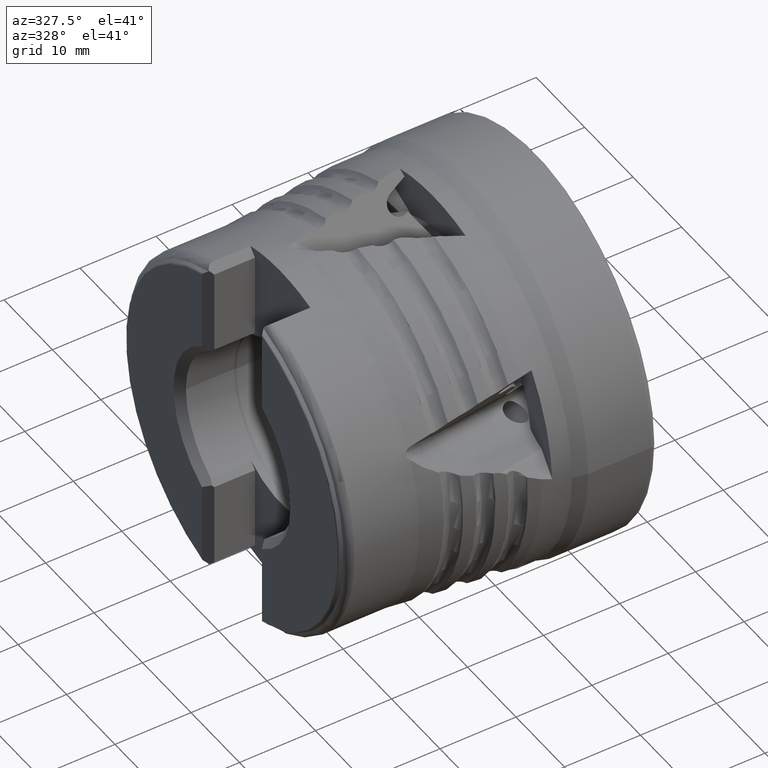
[diagram: clean part render]
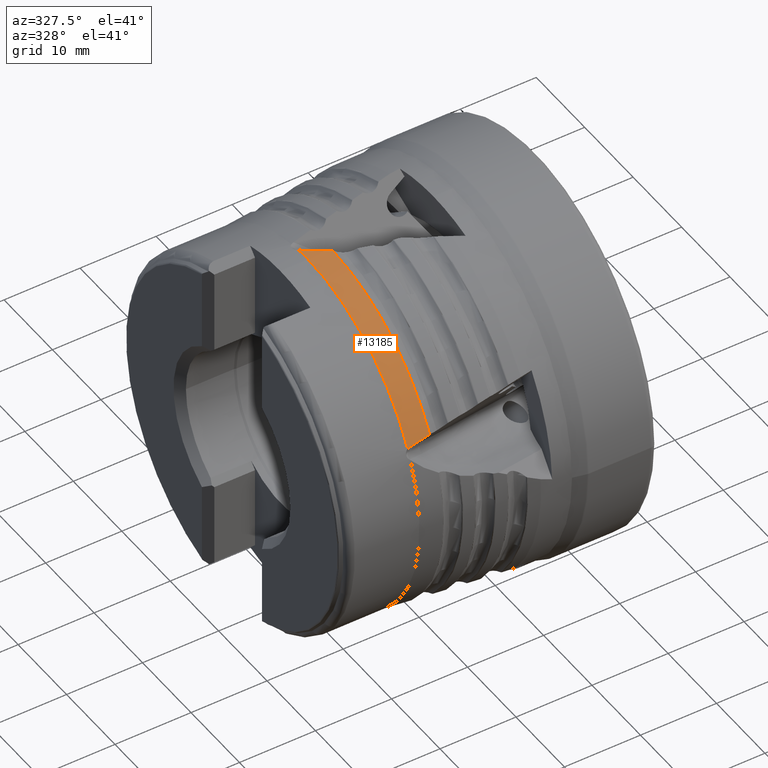
[diagram: same view with one face highlighted and labeled with its STEP entity id]
A machine part, auxiliary view. The second image highlights one B-rep face of the part: STEP entity #13185.
In plain terms, the highlighted conical surface has half-angle 5.994 deg.
Its self-contained STEP definition (entity closure, byte-faithful):
#156 = AXIS2_PLACEMENT_3D ( 'NONE', #11013, #11012, #11004 ) ;
#1086 = CARTESIAN_POINT ( 'NONE',  ( -28.24999999999999600, 0.0000000000000000000, 0.0000000000000000000 ) ) ;
#1087 = DIRECTION ( 'NONE',  ( 1.000000000000000000, -0.0000000000000000000, -0.0000000000000000000 ) ) ;
#1088 = DIRECTION ( 'NONE',  ( 0.0000000000000000000, 0.0000000000000000000, -1.000000000000000000 ) ) ;
#1868 =( BOUNDED_CURVE ( )  B_SPLINE_CURVE ( 3, ( #3703, #3712, #3713, #3714 ),
 .UNSPECIFIED., .F., .T. ) 
 B_SPLINE_CURVE_WITH_KNOTS ( ( 4, 4 ),
 ( 2.673960306243185100, 2.685593635761924800 ),
 .UNSPECIFIED. ) 
 CURVE ( )  GEOMETRIC_REPRESENTATION_ITEM ( )  RATIONAL_B_SPLINE_CURVE ( ( 1.000000000000000000, 0.9999887221688231700, 0.9999887221688231700, 1.000000000000000000 ) ) 
 REPRESENTATION_ITEM ( '' )  );
#2035 = AXIS2_PLACEMENT_3D ( 'NONE', #1086, #1087, #1088 ) ;
#2230 = AXIS2_PLACEMENT_3D ( 'NONE', #3438, #3443, #3444 ) ;
#2233 = AXIS2_PLACEMENT_3D ( 'NONE', #3494, #3505, #3506 ) ;
#2368 = EDGE_CURVE ( 'NONE', #12117, #11995, #9698, .T. ) ;
#3427 = CARTESIAN_POINT ( 'NONE',  ( -28.24999999999999600, -20.59479375501961600, 10.23984717601803900 ) ) ;
#3438 = CARTESIAN_POINT ( 'NONE',  ( -25.34068121597906800, 0.0000000000000000000, 0.0000000000000000000 ) ) ;
#3439 = CARTESIAN_POINT ( 'NONE',  ( -28.14826961748669000, -20.57621851849448500, 10.30119887669836800 ) ) ;
#3440 = CARTESIAN_POINT ( 'NONE',  ( -28.03780653122382200, -20.56827926068857000, 10.34272164944954000 ) ) ;
#3441 = CARTESIAN_POINT ( 'NONE',  ( -27.92119101465370100, -20.56807528095026800, 10.37032393940143200 ) ) ;
#3442 = CARTESIAN_POINT ( 'NONE',  ( -25.34068121597906800, -0.5604558410002837800, 23.29873850821460100 ) ) ;
#3443 = DIRECTION ( 'NONE',  ( 1.000000000000000000, -0.0000000000000000000, -0.0000000000000000000 ) ) ;
#3444 = DIRECTION ( 'NONE',  ( 0.0000000000000000000, 0.0000000000000000000, -1.000000000000000000 ) ) ;
#3447 = CARTESIAN_POINT ( 'NONE',  ( -25.88952891615645400, -0.2041425419153338700, 23.24966401659305900 ) ) ;
#3448 = CARTESIAN_POINT ( 'NONE',  ( -26.40956195691040900, 0.1842875308646685600, 23.19642845231889400 ) ) ;
#3449 = CARTESIAN_POINT ( 'NONE',  ( -27.38347538738023000, 1.033581135844771500, 23.07177707232817800 ) ) ;
#3450 = CARTESIAN_POINT ( 'NONE',  ( -27.83759337635334300, 1.494194155740938200, 23.00049055717917000 ) ) ;
#3451 = CARTESIAN_POINT ( 'NONE',  ( -28.25000000000000400, 1.999749306375688200, 22.91290035573082000 ) ) ;
#3494 = CARTESIAN_POINT ( 'NONE',  ( -28.24999999999999600, 0.0000000000000000000, 0.0000000000000000000 ) ) ;
#3505 = DIRECTION ( 'NONE',  ( 1.000000000000000000, -0.0000000000000000000, -0.0000000000000000000 ) ) ;
#3506 = DIRECTION ( 'NONE',  ( 0.0000000000000000000, 0.0000000000000000000, -1.000000000000000000 ) ) ;
#3703 = CARTESIAN_POINT ( 'NONE',  ( -25.34068121597906000, -20.55936111242128200, 10.97533587062066500 ) ) ;
#3712 = CARTESIAN_POINT ( 'NONE',  ( -26.21089899249785300, -20.56368353881470100, 10.77321406539971300 ) ) ;
#3713 = CARTESIAN_POINT ( 'NONE',  ( -27.07107862634943600, -20.56658829441694200, 10.57154114722688500 ) ) ;
#3714 = CARTESIAN_POINT ( 'NONE',  ( -27.92119101465370100, -20.56807528095026800, 10.37032393940143200 ) ) ;
#4450 = EDGE_CURVE ( 'NONE', #11850, #11862, #12403, .T. ) ;
#4451 = EDGE_CURVE ( 'NONE', #11455, #11715, #10238, .T. ) ;
#4452 = EDGE_CURVE ( 'NONE', #11455, #12117, #12404, .T. ) ;
#4466 = EDGE_CURVE ( 'NONE', #11995, #11850, #10245, .T. ) ;
#4517 = EDGE_CURVE ( 'NONE', #11715, #11862, #1868, .T. ) ;
#9157 = CARTESIAN_POINT ( 'NONE',  ( -25.34068121597906800, -0.5604558410002837800, 23.29873850821460100 ) ) ;
#9373 = CARTESIAN_POINT ( 'NONE',  ( -25.34068121597906000, -20.55936111242128200, 10.97533587062066500 ) ) ;
#9471 = CARTESIAN_POINT ( 'NONE',  ( -28.24999999999999600, -20.59479375501961600, 10.23984717601803900 ) ) ;
#9477 = CARTESIAN_POINT ( 'NONE',  ( -27.92119101465370100, -20.56807528095026800, 10.37032393940143200 ) ) ;
#9545 = CARTESIAN_POINT ( 'NONE',  ( -28.24999999999999600, 2.816687638038911600E-015, 22.99999999999999300 ) ) ;
#9667 = CARTESIAN_POINT ( 'NONE',  ( -28.25000000000000400, 1.999749306375688200, 22.91290035573082000 ) ) ;
#9698 = CIRCLE ( 'NONE', #2035, 22.99999999999999300 ) ;
#10238 = CIRCLE ( 'NONE', #2230, 23.30547847232219300 ) ;
#10245 = CIRCLE ( 'NONE', #2233, 22.99999999999999300 ) ;
#10600 = FACE_OUTER_BOUND ( 'NONE', #12672, .T. ) ;
#10602 = CONICAL_SURFACE ( 'NONE', #156, 23.30547847232219300, 0.1046166576325205800 ) ;
#11004 = DIRECTION ( 'NONE',  ( 0.0000000000000000000, 0.0000000000000000000, -1.000000000000000000 ) ) ;
#11012 = DIRECTION ( 'NONE',  ( 1.000000000000000000, -0.0000000000000000000, -0.0000000000000000000 ) ) ;
#11013 = CARTESIAN_POINT ( 'NONE',  ( -25.34068121597906800, 0.0000000000000000000, 0.0000000000000000000 ) ) ;
#11455 = VERTEX_POINT ( 'NONE', #9157 ) ;
#11715 = VERTEX_POINT ( 'NONE', #9373 ) ;
#11850 = VERTEX_POINT ( 'NONE', #9471 ) ;
#11862 = VERTEX_POINT ( 'NONE', #9477 ) ;
#11995 = VERTEX_POINT ( 'NONE', #9545 ) ;
#12117 = VERTEX_POINT ( 'NONE', #9667 ) ;
#12403 = B_SPLINE_CURVE_WITH_KNOTS ( 'NONE', 3,
 ( #3427, #3439, #3440, #3441 ),
 .UNSPECIFIED., .F., .F.,
 ( 4, 4 ),
 ( 7.152448122690996000E-018, 0.0003547582437154443000 ),
 .UNSPECIFIED. ) ;
#12404 = B_SPLINE_CURVE_WITH_KNOTS ( 'NONE', 3,
 ( #3442, #3447, #3448, #3449, #3450, #3451 ),
 .UNSPECIFIED., .F., .F.,
 ( 4, 2, 4 ),
 ( 5.303732630438429600E-018, 0.001947283830340332000, 0.003894567660680658900 ),
 .UNSPECIFIED. ) ;
#12672 = EDGE_LOOP ( 'NONE', ( #13037, #12895, #12941, #12888, #13053, #12978 ) ) ;
#12888 = ORIENTED_EDGE ( 'NONE', *, *, #4466, .T. ) ;
#12895 = ORIENTED_EDGE ( 'NONE', *, *, #4452, .T. ) ;
#12941 = ORIENTED_EDGE ( 'NONE', *, *, #2368, .T. ) ;
#12978 = ORIENTED_EDGE ( 'NONE', *, *, #4517, .F. ) ;
#13037 = ORIENTED_EDGE ( 'NONE', *, *, #4451, .F. ) ;
#13053 = ORIENTED_EDGE ( 'NONE', *, *, #4450, .T. ) ;
#13185 = ADVANCED_FACE ( 'NONE', ( #10600 ), #10602, .T. ) ;